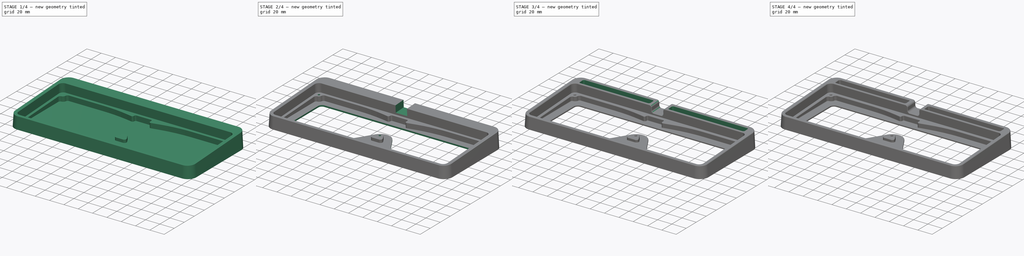
[diagram: build sequence overview — one tinted view per stage of 4, left to right]
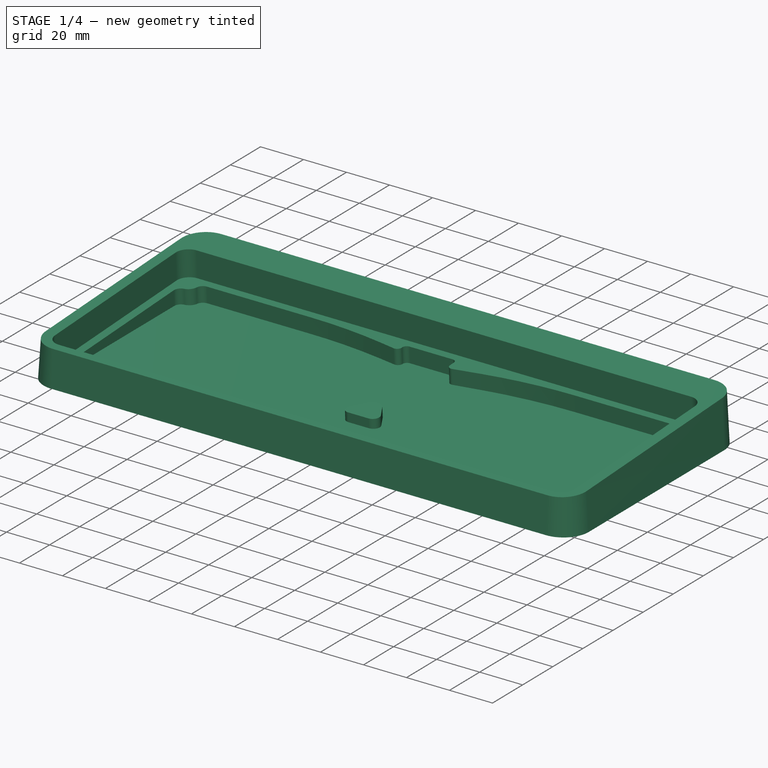
[diagram: stage 1 of 4 — iso view after this stage's code; geometry added in this stage tinted green]
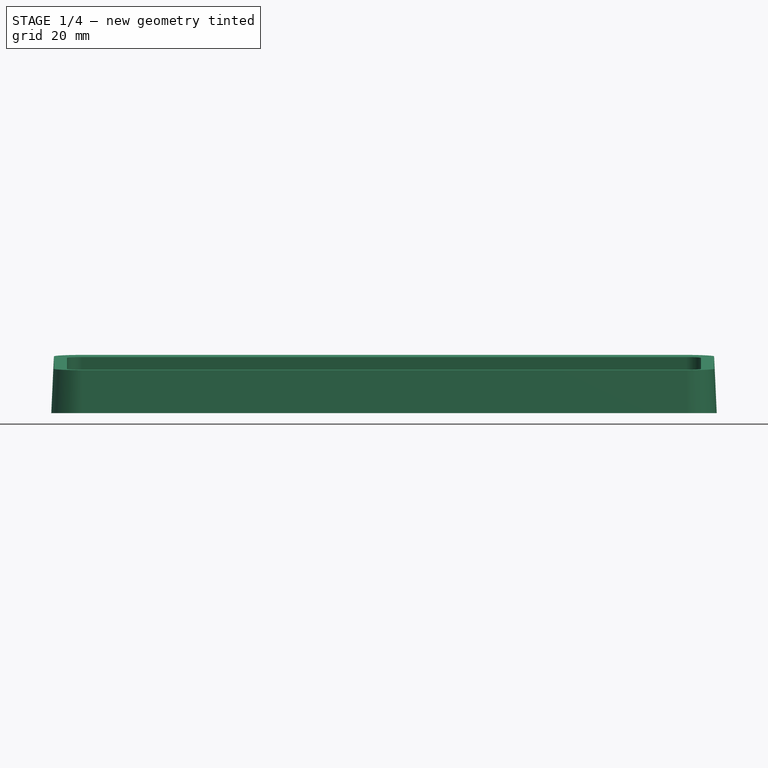
[diagram: stage 1 of 4 — front view after this stage's code; geometry added in this stage tinted green]
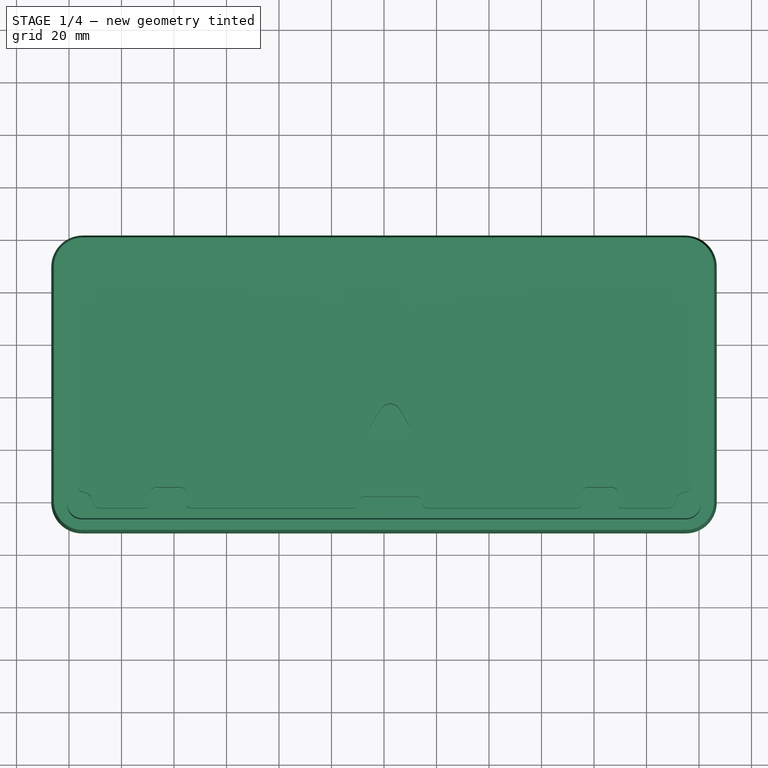
[diagram: stage 1 of 4 — top view after this stage's code; geometry added in this stage tinted green]
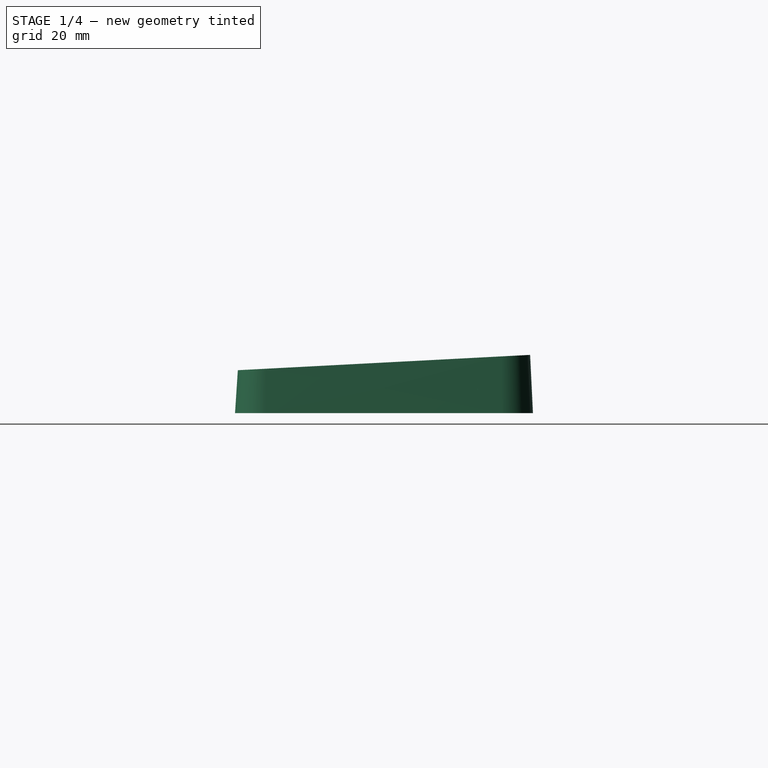
[diagram: stage 1 of 4 — right view after this stage's code; geometry added in this stage tinted green]
FCSTD DOCUMENT  (FreeCAD 0.20R)
Label: case
License: All rights reserved
LicenseURL: http://en.wikipedia.org/wiki/All_rights_reserved
objects: Sketcher::SketchObject×8, PartDesign::Pocket×5, PartDesign::Fillet×5, PartDesign::AdditiveLoft×1, PartDesign::Hole×1, PartDesign::Chamfer×1, PartDesign::Body×1
note: 35 computed .brp shape members not serialized (recipe doc carries the construction recipe); baked Part::Feature solids carry a one-line shape summary decoded from their .brp

FEATURE [Sketcher::SketchObject] Sketch
  FullyConstrained = false
  MapMode = 5
  Support = -> [XY_Plane]
  sketch-geometry (8):
    g0: LineSegment StartX=-115 StartY=-51.75 StartZ=0 EndX=115 EndY=-51.75 EndZ=0
    g1: ArcOfCircle CenterX=115 CenterY=-40 CenterZ=0 NormalX=0 NormalY=0 NormalZ=1 AngleXU=0 Radius=11.75 StartAngle=4.71239 EndAngle=6.28319
    g2: ArcOfCircle CenterX=-115 CenterY=-40 CenterZ=0 NormalX=0 NormalY=0 NormalZ=1 AngleXU=0 Radius=11.75 StartAngle=3.14159 EndAngle=4.71239
    g3: LineSegment StartX=-126.75 StartY=49.75 StartZ=0 EndX=-126.75 EndY=-40 EndZ=0
    g4: ArcOfCircle CenterX=-114.75 CenterY=49.75 CenterZ=0 NormalX=0 NormalY=0 NormalZ=1 AngleXU=0 Radius=12 StartAngle=1.5708 EndAngle=3.14159
    g5: LineSegment StartX=-114.75 StartY=61.75 StartZ=0 EndX=114.75 EndY=61.75 EndZ=0
    g6: LineSegment StartX=126.75 StartY=49.75 StartZ=0 EndX=126.75 EndY=-40 EndZ=0
    g7: ArcOfCircle CenterX=114.75 CenterY=49.75 CenterZ=0 NormalX=0 NormalY=0 NormalZ=1 AngleXU=0 Radius=12 StartAngle=0 EndAngle=1.5708
  constraints (8):
    c: Coincident(g2,g3)
    c: Coincident(g3,g4)
    c: Coincident(g0,g2)
    c: Coincident(g4,g5)
    c: Coincident(g5,g7)
    c: Coincident(g0,g1)
    c: Coincident(g1,g6)
    c: Coincident(g6,g7)
FEATURE [Sketcher::SketchObject] Sketch001
  AttachmentOffset = pos=(0,0,19) rot=(1,0,0;0.05236rad)
  FullyConstrained = false
  MapMode = 5
  Placement = pos=(0,0,19) rot=(1,0,0;0.05236rad)
  Support = -> [XY_Plane]
  sketch-geometry (8):
    g0: ArcOfCircle CenterX=-115 CenterY=-40 CenterZ=0 NormalX=0 NormalY=0 NormalZ=1 AngleXU=0 Radius=10.75 StartAngle=3.14159 EndAngle=4.71239
    g1: LineSegment StartX=-115 StartY=-50.75 StartZ=0 EndX=115 EndY=-50.75 EndZ=0
    g2: ArcOfCircle CenterX=115 CenterY=-40 CenterZ=0 NormalX=0 NormalY=0 NormalZ=1 AngleXU=0 Radius=10.75 StartAngle=4.71239 EndAngle=6.28319
    g3: LineSegment StartX=125.75 StartY=49.75 StartZ=0 EndX=125.75 EndY=-40 EndZ=0
    g4: ArcOfCircle CenterX=114.75 CenterY=49.75 CenterZ=0 NormalX=0 NormalY=0 NormalZ=1 AngleXU=0 Radius=11 StartAngle=0 EndAngle=1.5708
    g5: LineSegment StartX=-114.75 StartY=60.75 StartZ=0 EndX=114.75 EndY=60.75 EndZ=0
    g6: LineSegment StartX=-125.75 StartY=49.75 StartZ=0 EndX=-125.75 EndY=-40 EndZ=0
    g7: ArcOfCircle CenterX=-114.75 CenterY=49.75 CenterZ=0 NormalX=0 NormalY=0 NormalZ=1 AngleXU=0 Radius=11 StartAngle=1.5708 EndAngle=3.14159
  constraints (8):
    c: Coincident(g0,g6)
    c: Coincident(g6,g7)
    c: Coincident(g0,g1)
    c: Coincident(g5,g7)
    c: Coincident(g4,g5)
    c: Coincident(g1,g2)
    c: Coincident(g2,g3)
    c: Coincident(g3,g4)
FEATURE [PartDesign::AdditiveLoft] AdditiveLoft
  Closed = true
  Profile = -> Sketch
  Ruled = true
  Sections = -> [Sketch001]
FEATURE [Sketcher::SketchObject] Sketch002
  FullyConstrained = false
  MapMode = 5
  Placement = pos=(0,-0.99302,18.948) rot=(1,0,0;0.05236rad)
  Support = -> [AdditiveLoft]
  sketch-geometry (8):
    g0: LineSegment StartX=-115 StartY=45.75 StartZ=0 EndX=115 EndY=45.75 EndZ=0
    g1: LineSegment StartX=-115 StartY=-45.75 StartZ=0 EndX=115 EndY=-45.75 EndZ=0
    g2: ArcOfCircle CenterX=115 CenterY=-40 CenterZ=0 NormalX=0 NormalY=0 NormalZ=1 AngleXU=0 Radius=5.75 StartAngle=4.71239 EndAngle=6.28319
    g3: LineSegment StartX=120.75 StartY=40 StartZ=0 EndX=120.75 EndY=-40 EndZ=0
    g4: ArcOfCircle CenterX=115 CenterY=40 CenterZ=0 NormalX=0 NormalY=0 NormalZ=1 AngleXU=0 Radius=5.75 StartAngle=0 EndAngle=1.5708
    g5: ArcOfCircle CenterX=-115 CenterY=-40 CenterZ=0 NormalX=0 NormalY=0 NormalZ=1 AngleXU=0 Radius=5.75 StartAngle=3.14159 EndAngle=4.71239
    g6: LineSegment StartX=-120.75 StartY=40 StartZ=0 EndX=-120.75 EndY=-40 EndZ=0
    g7: ArcOfCircle CenterX=-115 CenterY=40 CenterZ=0 NormalX=0 NormalY=0 NormalZ=1 AngleXU=0 Radius=5.75 StartAngle=1.5708 EndAngle=3.14159
  constraints (8):
    c: Coincident(g5,g6)
    c: Coincident(g6,g7)
    c: Coincident(g1,g5)
    c: Coincident(g0,g7)
    c: Coincident(g1,g2)
    c: Coincident(g0,g4)
    c: Coincident(g2,g3)
    c: Coincident(g3,g4)
FEATURE [PartDesign::Pocket] Pocket
  BaseFeature = -> AdditiveLoft
  Direction = (0,0.052336,-0.99863)
  Length = 12
  Length2 = 5
  Profile = -> Sketch002
  ReferenceAxis = -> Sketch002 [N_Axis]
  Type = 0
FEATURE [Sketcher::SketchObject] Sketch003
  FullyConstrained = false
  MapMode = 5
  Placement = pos=(0,-0.364989,6.9644) rot=(1,0,0;0.05236rad)
  Support = -> [Pocket]
  sketch-geometry (58):
    g0: ArcOfCircle CenterX=2.375 CenterY=-6.28567 CenterZ=0 NormalX=0 NormalY=0 NormalZ=1 AngleXU=0 Radius=4.1 StartAngle=0.532966 EndAngle=2.57593
    g1: ArcOfCircle CenterX=-107.971 CenterY=-39 CenterZ=0 NormalX=0 NormalY=0 NormalZ=1 AngleXU=0 Radius=3 StartAngle=3.28291 EndAngle=4.71239
    g2: ArcOfCircle CenterX=-114 CenterY=-32.9708 CenterZ=0 NormalX=0 NormalY=0 NormalZ=1 AngleXU=0 Radius=3 StartAngle=3.14159 EndAngle=4.57107
    g3: LineSegment StartX=-117 StartY=32.9708 StartZ=0 EndX=-117 EndY=-32.9708 EndZ=0
    g4: ArcOfCircle CenterX=-114 CenterY=32.9708 CenterZ=0 NormalX=0 NormalY=0 NormalZ=1 AngleXU=0 Radius=3 StartAngle=1.71211 EndAngle=3.14159
    g5: ArcOfCircle CenterX=-107.971 CenterY=39 CenterZ=0 NormalX=0 NormalY=0 NormalZ=1 AngleXU=0 Radius=3 StartAngle=1.5708 EndAngle=3.00028
    g6: ArcOfCircle CenterX=107.971 CenterY=39 CenterZ=0 NormalX=0 NormalY=0 NormalZ=1 AngleXU=0 Radius=3 StartAngle=0.141315 EndAngle=1.5708
    g7: ArcOfCircle CenterX=114 CenterY=32.9708 CenterZ=0 NormalX=0 NormalY=0 NormalZ=1 AngleXU=0 Radius=3 StartAngle=0 EndAngle=1.42948
    g8: ArcOfCircle CenterX=107.971 CenterY=-39 CenterZ=0 NormalX=0 NormalY=0 NormalZ=1 AngleXU=0 Radius=3 StartAngle=4.71239 EndAngle=6.14187
    g9: LineSegment StartX=117 StartY=32.9708 StartZ=0 EndX=117 EndY=-32.9708 EndZ=0
    g10: ArcOfCircle CenterX=114 CenterY=-32.9708 CenterZ=0 NormalX=0 NormalY=0 NormalZ=1 AngleXU=0 Radius=3 StartAngle=4.8537 EndAngle=6.28319
    g11: ArcOfCircle CenterX=115 CenterY=-40 CenterZ=0 NormalX=0 NormalY=0 NormalZ=1 AngleXU=0 Radius=4.1 StartAngle=1.71211 EndAngle=3.00028
    g12: ArcOfCircle CenterX=115 CenterY=40 CenterZ=0 NormalX=0 NormalY=0 NormalZ=1 AngleXU=0 Radius=4.1 StartAngle=3.28291 EndAngle=4.57107
    g13: ArcOfCircle CenterX=-115 CenterY=40 CenterZ=0 NormalX=0 NormalY=0 NormalZ=1 AngleXU=0 Radius=4.1 StartAngle=4.8537 EndAngle=6.14187
    g14: ArcOfCircle CenterX=-115 CenterY=-40 CenterZ=0 NormalX=0 NormalY=0 NormalZ=1 AngleXU=0 Radius=4.1 StartAngle=0.141315 EndAngle=1.42948
    g15: LineSegment StartX=5.90635 StartY=-4.2025 StartZ=0 EndX=9.51837 EndY=-10.3255 EndZ=0
    g16: ArcOfCircle CenterX=6.93445 CenterY=-11.8498 CenterZ=0 NormalX=0 NormalY=0 NormalZ=1 AngleXU=0 Radius=3 StartAngle=4.71239 EndAngle=6.81615
    g17: LineSegment StartX=-2.46045 StartY=-14.8498 StartZ=0 EndX=6.93445 EndY=-14.8498 EndZ=0
    g18: LineSegment StartX=-1.08635 StartY=-4.08816 StartZ=0 EndX=-4.99315 EndY=-10.2419 EndZ=0
    g19: ArcOfCircle CenterX=-2.46045 CenterY=-11.8498 CenterZ=0 NormalX=0 NormalY=0 NormalZ=1 AngleXU=0 Radius=3 StartAngle=2.57593 EndAngle=4.71239
    g20: LineSegment StartX=90.8588 StartY=-42 StartZ=0 EndX=107.971 EndY=-42 EndZ=0
    g21: ArcOfCircle CenterX=90.8588 CenterY=-40 CenterZ=0 NormalX=0 NormalY=0 NormalZ=1 AngleXU=0 Radius=2 StartAngle=3.14159 EndAngle=4.71239
    g22: LineSegment StartX=88.8588 StartY=-40 StartZ=0 EndX=88.8588 EndY=-36 EndZ=0
    g23: ArcOfCircle CenterX=86.8588 CenterY=-36 CenterZ=0 NormalX=0 NormalY=0 NormalZ=1 AngleXU=0 Radius=2 StartAngle=0 EndAngle=1.5708
    g24: LineSegment StartX=77.4585 StartY=-34 StartZ=0 EndX=86.8588 EndY=-34 EndZ=0
    g25: ArcOfCircle CenterX=77.4585 CenterY=-36 CenterZ=0 NormalX=0 NormalY=0 NormalZ=1 AngleXU=0 Radius=2 StartAngle=1.5708 EndAngle=3.14159
    g26: LineSegment StartX=75.4585 StartY=-40 StartZ=0 EndX=75.4585 EndY=-36 EndZ=0
    g27: ArcOfCircle CenterX=73.4585 CenterY=-40 CenterZ=0 NormalX=0 NormalY=0 NormalZ=1 AngleXU=0 Radius=2 StartAngle=4.71239 EndAngle=6.28319
    g28: ArcOfCircle CenterX=-73.453 CenterY=-40 CenterZ=0 NormalX=0 NormalY=0 NormalZ=1 AngleXU=0 Radius=2 StartAngle=3.14159 EndAngle=4.71239
    g29: LineSegment StartX=-75.453 StartY=-40 StartZ=0 EndX=-75.453 EndY=-36 EndZ=0
    g30: ArcOfCircle CenterX=-77.453 CenterY=-36 CenterZ=0 NormalX=0 NormalY=0 NormalZ=1 AngleXU=0 Radius=2 StartAngle=0 EndAngle=1.5708
    g31: LineSegment StartX=-86.8588 StartY=-34 StartZ=0 EndX=-77.453 EndY=-34 EndZ=0
    g32: ArcOfCircle CenterX=-86.8588 CenterY=-36 CenterZ=0 NormalX=0 NormalY=0 NormalZ=1 AngleXU=0 Radius=2 StartAngle=1.5708 EndAngle=3.14159
    g33: LineSegment StartX=-88.8588 StartY=-40 StartZ=0 EndX=-88.8588 EndY=-36 EndZ=0
    g34: LineSegment StartX=-107.971 StartY=-42 StartZ=0 EndX=-90.8588 EndY=-42 EndZ=0
    g35: ArcOfCircle CenterX=-90.8588 CenterY=-40 CenterZ=0 NormalX=0 NormalY=0 NormalZ=1 AngleXU=0 Radius=2 StartAngle=4.71239 EndAngle=6.28319
    g36: ArcOfCircle CenterX=10.2392 CenterY=37.3596 CenterZ=0 NormalX=0 NormalY=0 NormalZ=1 AngleXU=0 Radius=2 StartAngle=3.14159 EndAngle=4.91659
    g37: ArcOfCircle CenterX=-17.7608 CenterY=39.6802 CenterZ=0 NormalX=0 NormalY=0 NormalZ=1 AngleXU=0 Radius=2 StartAngle=4.53786 EndAngle=6.28319
    g38: LineSegment StartX=-15.7608 StartY=39.6802 StartZ=0 EndX=-15.7608 EndY=40 EndZ=0
    g39: ArcOfCircle CenterX=-13.7608 CenterY=40 CenterZ=0 NormalX=0 NormalY=0 NormalZ=1 AngleXU=0 Radius=2 StartAngle=1.5708 EndAngle=3.14159
    g40: LineSegment StartX=8.23921 StartY=37.3596 StartZ=0 EndX=8.23921 EndY=40 EndZ=0
    g41: LineSegment StartX=-13.7608 StartY=42 StartZ=0 EndX=6.23921 EndY=42 EndZ=0
    g42: ArcOfCircle CenterX=6.23921 CenterY=40 CenterZ=0 NormalX=0 NormalY=0 NormalZ=1 AngleXU=0 Radius=2 StartAngle=0 EndAngle=1.5708
    g43: LineSegment StartX=-25.2029 StartY=38.9616 StartZ=0 EndX=-18.1081 EndY=37.7105 EndZ=0
    g44: LineSegment StartX=-107.971 StartY=42 StartZ=0 EndX=-59.9325 EndY=42 EndZ=0
    g45: ArcOfCircle CenterX=-59.9325 CenterY=-158 CenterZ=0 NormalX=0 NormalY=0 NormalZ=1 AngleXU=0 Radius=200 StartAngle=1.39626 EndAngle=1.5708
    g46: LineSegment StartX=10.6448 StartY=35.4012 StartZ=0 EndX=22.4434 EndY=37.8446 EndZ=0
    g47: LineSegment StartX=63.0009 StartY=42 StartZ=0 EndX=107.971 EndY=42 EndZ=0
    g48: ArcOfCircle CenterX=63.0009 CenterY=-158 CenterZ=0 NormalX=0 NormalY=0 NormalZ=1 AngleXU=0 Radius=200 StartAngle=1.5708 EndAngle=1.775
    g49: LineSegment StartX=-73.453 StartY=-42 StartZ=0 EndX=-11.852 EndY=-42 EndZ=0
    g50: ArcOfCircle CenterX=-11.852 CenterY=-40 CenterZ=0 NormalX=0 NormalY=0 NormalZ=1 AngleXU=0 Radius=2 StartAngle=4.71239 EndAngle=6.10283
    g51: LineSegment StartX=-9.68066 StartY=-39.241 StartZ=0 EndX=-9.88445 EndY=-40.3588 EndZ=0
    g52: ArcOfCircle CenterX=-7.7131 CenterY=-39.5998 CenterZ=0 NormalX=0 NormalY=0 NormalZ=1 AngleXU=0 Radius=2 StartAngle=1.5708 EndAngle=2.96124
    g53: LineSegment StartX=-7.7131 StartY=-37.5998 StartZ=0 EndX=12.4631 EndY=-37.5998 EndZ=0
    g54: ArcOfCircle CenterX=12.4631 CenterY=-39.5998 CenterZ=0 NormalX=0 NormalY=0 NormalZ=1 AngleXU=0 Radius=2 StartAngle=0.180353 EndAngle=1.5708
    g55: LineSegment StartX=14.4307 StartY=-39.241 StartZ=0 EndX=14.6345 EndY=-40.3588 EndZ=0
    g56: LineSegment StartX=16.602 StartY=-42 StartZ=0 EndX=73.4585 EndY=-42 EndZ=0
    g57: ArcOfCircle CenterX=16.602 CenterY=-40 CenterZ=0 NormalX=0 NormalY=0 NormalZ=1 AngleXU=0 Radius=2 StartAngle=3.32195 EndAngle=4.71239
  constraints (58):
    c: Coincident(g2,g3)
    c: Coincident(g3,g4)
    c: Coincident(g2,g14)
    c: Coincident(g4,g13)
    c: Coincident(g1,g14)
    c: Coincident(g5,g13)
    c: Coincident(g1,g34)
    c: Coincident(g5,g44)
    c: Coincident(g34,g35)
    c: Coincident(g33,g35)
    c: Coincident(g32,g33)
    c: Coincident(g31,g32)
    c: Coincident(g30,g31)
    c: Coincident(g28,g29)
    c: Coincident(g29,g30)
    c: Coincident(g28,g49)
    c: Coincident(g44,g45)
    c: Coincident(g43,g45)
    c: Coincident(g37,g43)
    c: Coincident(g37,g38)
    c: Coincident(g38,g39)
    c: Coincident(g39,g41)
    c: Coincident(g49,g50)
    c: Coincident(g50,g51)
    c: Coincident(g51,g52)
    c: Coincident(g52,g53)
    c: Coincident(g18,g19)
    c: Coincident(g17,g19)
    c: Coincident(g0,g18)
    c: Coincident(g0,g15)
    c: Coincident(g41,g42)
    c: Coincident(g16,g17)
    c: Coincident(g36,g40)
    c: Coincident(g40,g42)
    c: Coincident(g15,g16)
    c: Coincident(g36,g46)
    c: Coincident(g53,g54)
    c: Coincident(g54,g55)
    c: Coincident(g55,g57)
    c: Coincident(g56,g57)
    c: Coincident(g46,g48)
    c: Coincident(g47,g48)
    c: Coincident(g27,g56)
    c: Coincident(g26,g27)
    c: Coincident(g25,g26)
    c: Coincident(g24,g25)
    c: Coincident(g23,g24)
    c: Coincident(g21,g22)
    c: Coincident(g22,g23)
    c: Coincident(g20,g21)
    c: Coincident(g8,g20)
    c: Coincident(g6,g47)
    c: Coincident(g8,g11)
    c: Coincident(g6,g12)
    c: Coincident(g10,g11)
    c: Coincident(g7,g12)
    c: Coincident(g9,g10)
    c: Coincident(g7,g9)
FEATURE [PartDesign::Pocket] Pocket001
  BaseFeature = -> Pocket
  Direction = (0,0.052336,-0.99863)
  Length = 0
  Length2 = 5
  Offset = -2
  Profile = -> Sketch003
  ReferenceAxis = -> Sketch003 [N_Axis]
  Type = 3
  UpToFace = -> Pocket [Face1]
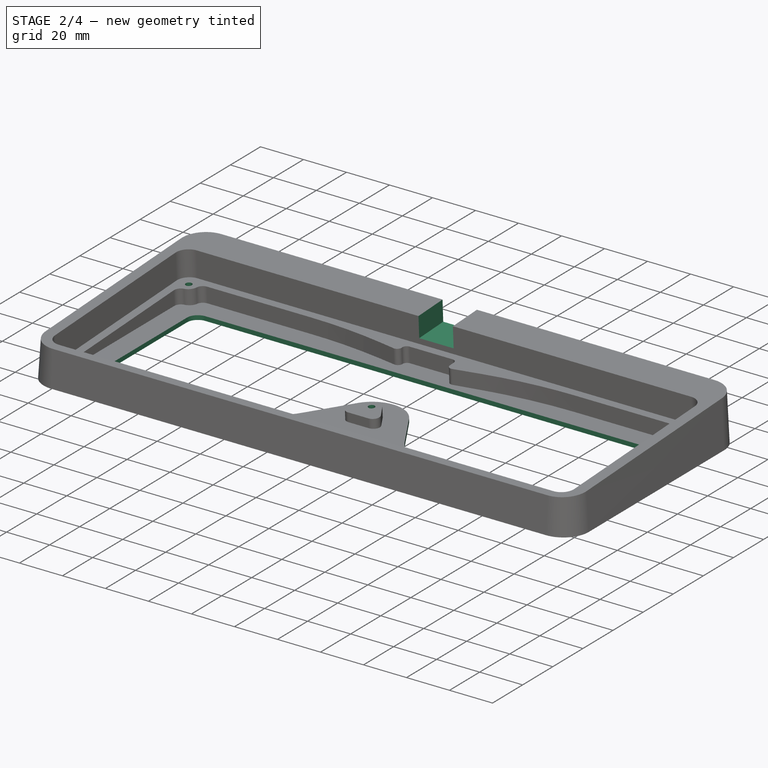
[diagram: stage 2 of 4 — iso view after this stage's code; geometry added in this stage tinted green]
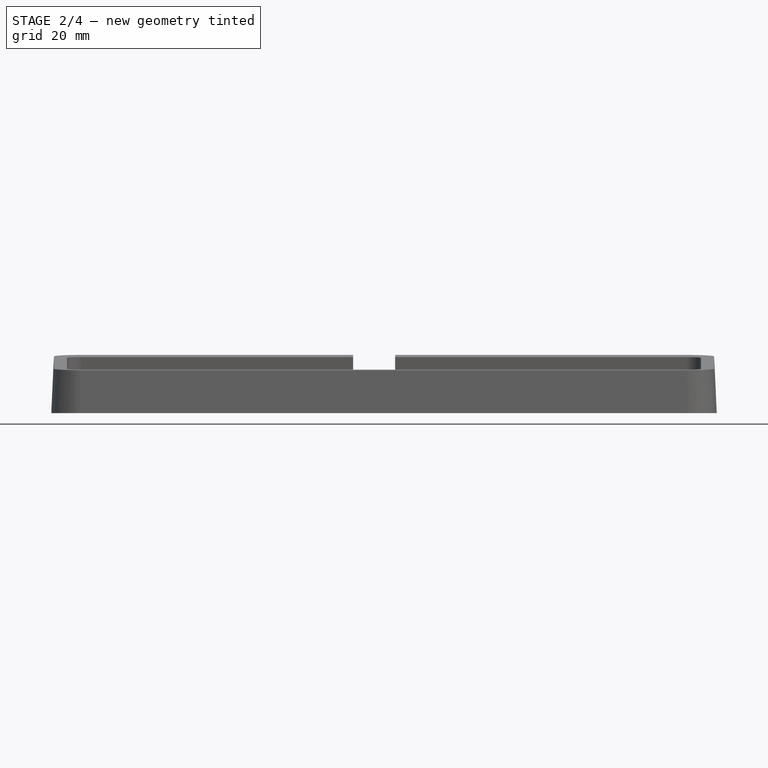
[diagram: stage 2 of 4 — front view after this stage's code; geometry added in this stage tinted green]
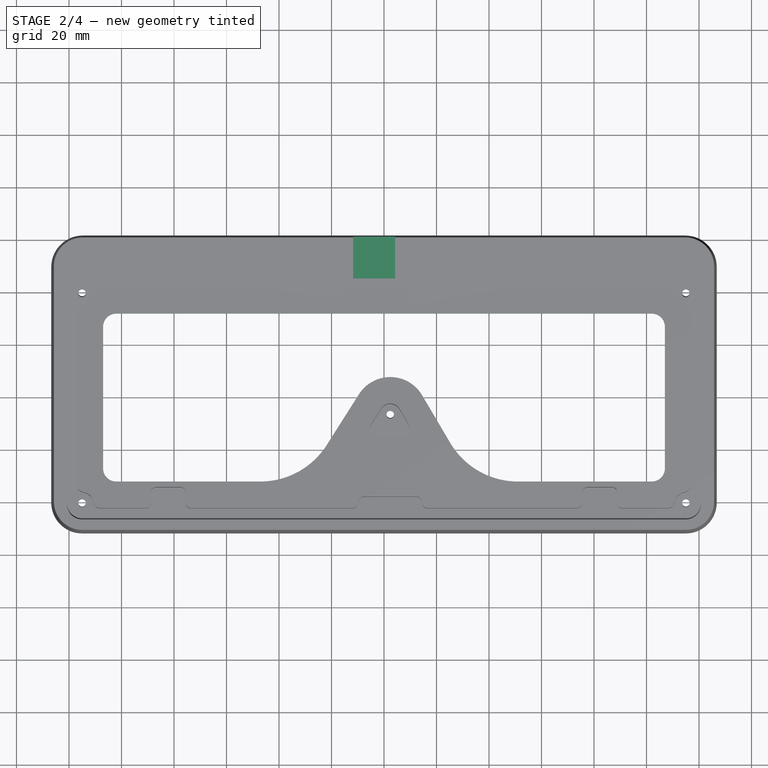
[diagram: stage 2 of 4 — top view after this stage's code; geometry added in this stage tinted green]
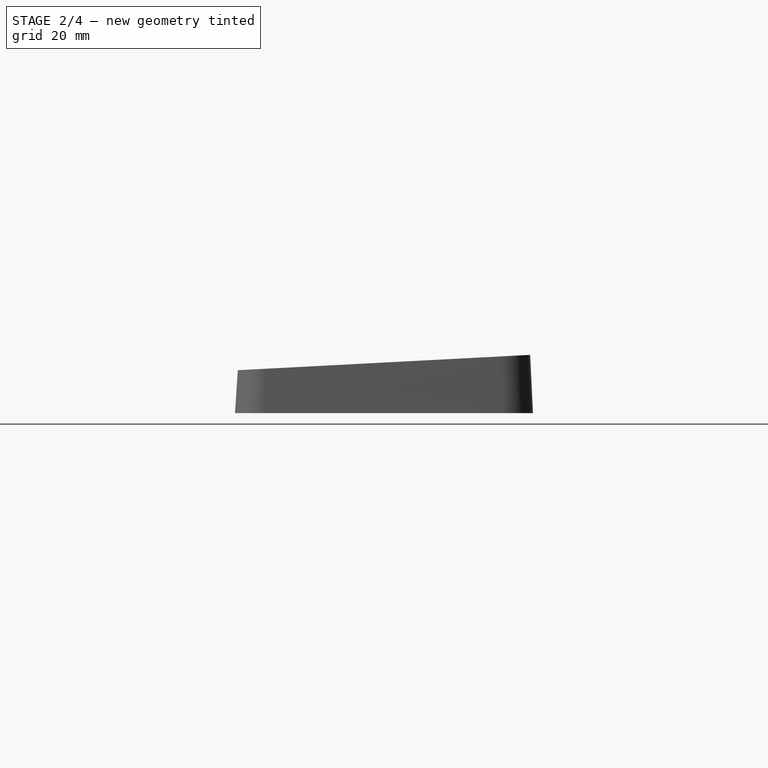
[diagram: stage 2 of 4 — right view after this stage's code; geometry added in this stage tinted green]
FEATURE [Sketcher::SketchObject] Sketch004
  FullyConstrained = false
  MapMode = 5
  Placement = pos=(0,-0.364989,6.9644) rot=(1,0,0;0.05236rad)
  Support = -> [Pocket]
  sketch-geometry (5):
    g0: Circle CenterX=-115 CenterY=40 CenterZ=0 NormalX=0 NormalY=0 NormalZ=-1 AngleXU=0 Radius=1.1
    g1: Circle CenterX=-115 CenterY=-40 CenterZ=0 NormalX=0 NormalY=0 NormalZ=-1 AngleXU=0 Radius=1.1
    g2: Circle CenterX=115 CenterY=-40 CenterZ=0 NormalX=0 NormalY=0 NormalZ=-1 AngleXU=0 Radius=1.1
    g3: Circle CenterX=115 CenterY=40 CenterZ=0 NormalX=0 NormalY=0 NormalZ=-1 AngleXU=0 Radius=1.1
    g4: Circle CenterX=2.375 CenterY=-6.28567 CenterZ=0 NormalX=0 NormalY=0 NormalZ=-1 AngleXU=0 Radius=1.1
FEATURE [PartDesign::Hole] Hole
  BaseFeature = -> Pocket001
  CustomThreadClearance = 0
  Depth = 25
  DepthType = 0
  Diameter = 2.9
  DrillForDepth = false
  DrillPoint = 1
  DrillPointAngle = 118
  HoleCutCountersinkAngle = 90
  HoleCutCustomValues = false
  HoleCutDepth = 0
  HoleCutDiameter = 6.1
  HoleCutType = 0
  ModelThread = false
  Profile = -> Sketch004
  Tapered = false
  TaperedAngle = 90
  ThreadClass = 0
  ThreadDepth = 25
  ThreadDepthType = 0
  ThreadDirection = 0
  ThreadFit = 0
  ThreadSize = 8
  ThreadType = 1
  Threaded = false
  UseCustomThreadClearance = false
FEATURE [Sketcher::SketchObject] Sketch005
  FullyConstrained = false
  MapMode = 5
  Placement = pos=(0,0,1.99726) rot=(0,0,1;0rad)
  Support = -> [Pocket001]
  sketch-geometry (14):
    g0: ArcOfCircle CenterX=2.375 CenterY=-6.28567 CenterZ=0 NormalX=0 NormalY=0 NormalZ=1 AngleXU=0 Radius=14.1 StartAngle=0.532966 EndAngle=2.57593
    g1: LineSegment StartX=-9.52867 StartY=1.27161 StartZ=0 EndX=-21.814 EndY=-18.0793 EndZ=0
    g2: ArcOfCircle CenterX=-47.141 CenterY=-2 CenterZ=0 NormalX=0 NormalY=0 NormalZ=1 AngleXU=0 Radius=30 StartAngle=4.71239 EndAngle=5.71752
    g3: LineSegment StartX=14.5194 StartY=0.878403 StartZ=0 EndX=25.2092 EndY=-17.2427 EndZ=0
    g4: ArcOfCircle CenterX=51.0483 CenterY=-2 CenterZ=0 NormalX=0 NormalY=0 NormalZ=1 AngleXU=0 Radius=30 StartAngle=3.67456 EndAngle=4.71239
    g5: ArcOfCircle CenterX=102 CenterY=27 CenterZ=0 NormalX=0 NormalY=0 NormalZ=1 AngleXU=0 Radius=5 StartAngle=0 EndAngle=1.5708
    g6: LineSegment StartX=107 StartY=27 StartZ=0 EndX=107 EndY=-27 EndZ=0
    g7: LineSegment StartX=51.0483 StartY=-32 StartZ=0 EndX=102 EndY=-32 EndZ=0
    g8: ArcOfCircle CenterX=102 CenterY=-27 CenterZ=0 NormalX=0 NormalY=0 NormalZ=1 AngleXU=0 Radius=5 StartAngle=4.71239 EndAngle=6.28319
    g9: LineSegment StartX=-102 StartY=32 StartZ=0 EndX=102 EndY=32 EndZ=0
    g10: ArcOfCircle CenterX=-102 CenterY=27 CenterZ=0 NormalX=0 NormalY=0 NormalZ=1 AngleXU=0 Radius=5 StartAngle=1.5708 EndAngle=3.14159
    g11: LineSegment StartX=-107 StartY=27 StartZ=0 EndX=-107 EndY=-27 EndZ=0
    g12: LineSegment StartX=-102 StartY=-32 StartZ=0 EndX=-47.141 EndY=-32 EndZ=0
    g13: ArcOfCircle CenterX=-102 CenterY=-27 CenterZ=0 NormalX=0 NormalY=0 NormalZ=1 AngleXU=0 Radius=5 StartAngle=3.14159 EndAngle=4.71239
  constraints (14):
    c: Coincident(g11,g13)
    c: Coincident(g10,g11)
    c: Coincident(g12,g13)
    c: Coincident(g9,g10)
    c: Coincident(g2,g12)
    c: Coincident(g1,g2)
    c: Coincident(g0,g1)
    c: Coincident(g0,g3)
    c: Coincident(g3,g4)
    c: Coincident(g4,g7)
    c: Coincident(g7,g8)
    c: Coincident(g5,g9)
    c: Coincident(g6,g8)
    c: Coincident(g5,g6)
FEATURE [PartDesign::Pocket] Pocket002
  BaseFeature = -> Hole
  Direction = (0,0,-1)
  Length = 5
  Length2 = 5
  Profile = -> Sketch005
  ReferenceAxis = -> Sketch005 [N_Axis]
  Type = 1
FEATURE [Sketcher::SketchObject] Sketch006
  FullyConstrained = false
  MapMode = 5
  Placement = pos=(0,-0.99302,18.948) rot=(1,0,0;0.05236rad)
  Support = -> [AdditiveLoft]
  sketch-geometry (4):
    g0: LineSegment StartX=4.23921 StartY=43.5 StartZ=0 EndX=-11.7608 EndY=43.5 EndZ=0
    g1: LineSegment StartX=-11.7608 StartY=43.5 StartZ=0 EndX=-11.7608 EndY=66 EndZ=0
    g2: LineSegment StartX=4.23921 StartY=43.5 StartZ=0 EndX=4.23921 EndY=66 EndZ=0
    g3: LineSegment StartX=4.23921 StartY=66 StartZ=0 EndX=-11.7608 EndY=66 EndZ=0
  constraints (4):
    c: Coincident(g0,g1)
    c: Coincident(g1,g3)
    c: Coincident(g0,g2)
    c: Coincident(g2,g3)
FEATURE [PartDesign::Pocket] Pocket003
  BaseFeature = -> Pocket002
  Direction = (0,0.052336,-0.99863)
  Length = 0
  Length2 = 5
  Offset = -2.5
  Profile = -> Sketch006
  ReferenceAxis = -> Sketch006 [N_Axis]
  Type = 3
  UpToFace = -> Pocket002 [Face30]
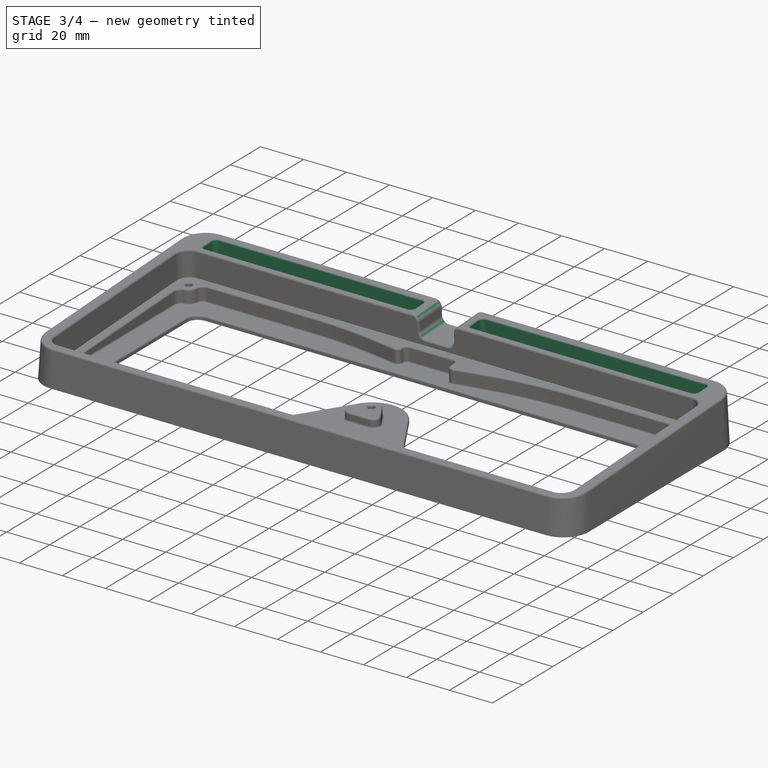
[diagram: stage 3 of 4 — iso view after this stage's code; geometry added in this stage tinted green]
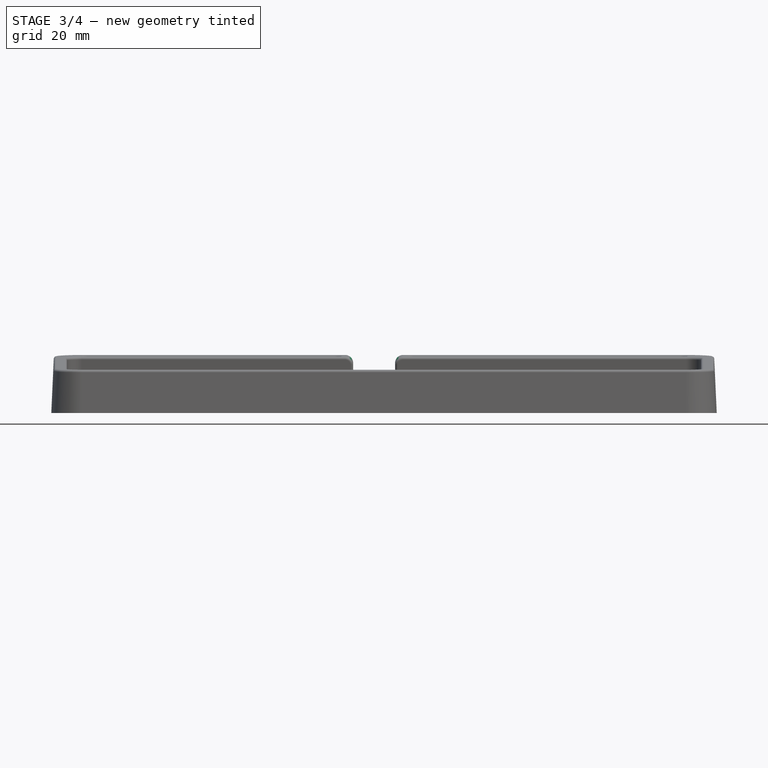
[diagram: stage 3 of 4 — front view after this stage's code; geometry added in this stage tinted green]
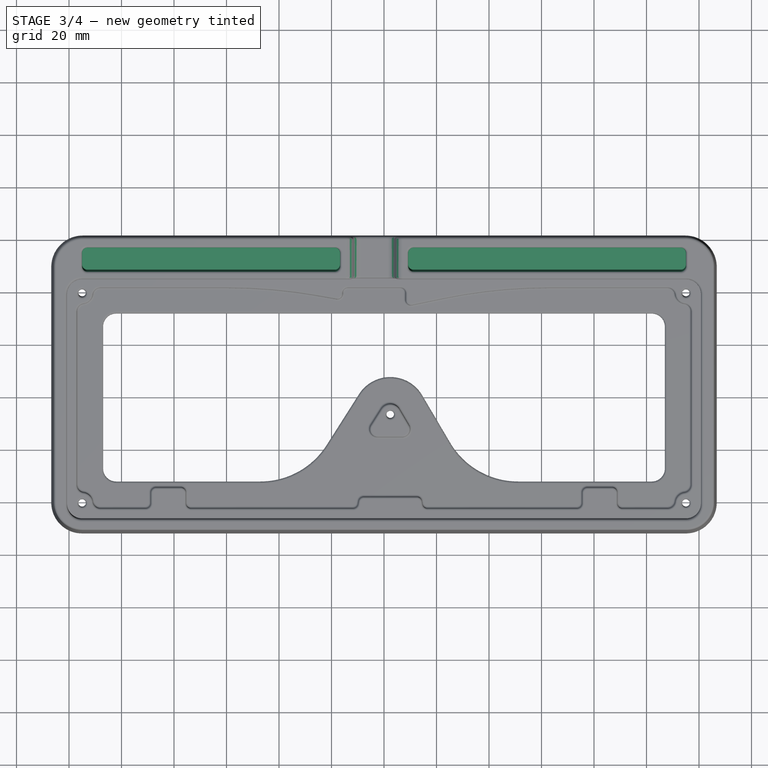
[diagram: stage 3 of 4 — top view after this stage's code; geometry added in this stage tinted green]
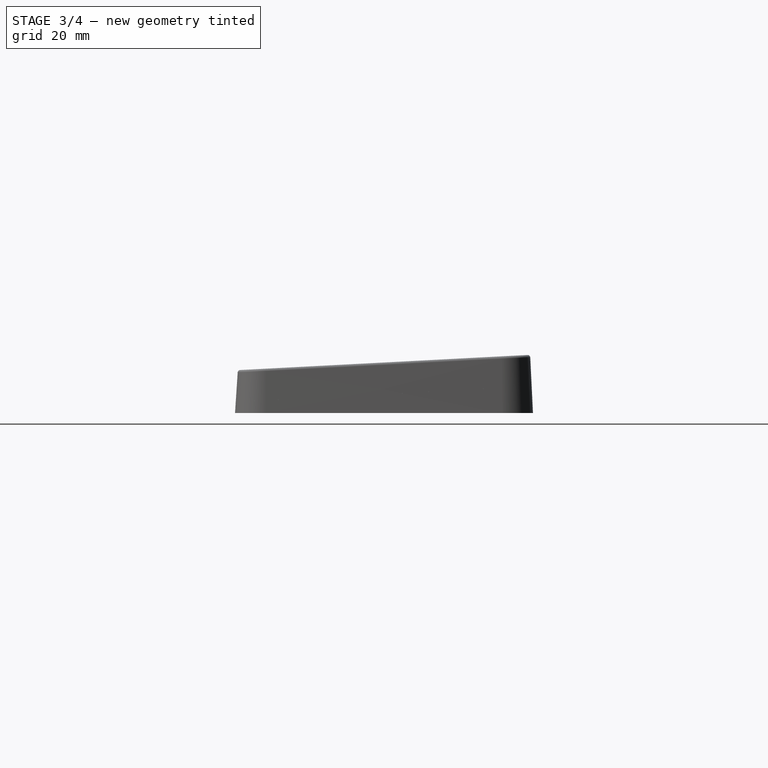
[diagram: stage 3 of 4 — right view after this stage's code; geometry added in this stage tinted green]
FEATURE [Sketcher::SketchObject] Sketch007
  FullyConstrained = false
  MapMode = 5
  Placement = pos=(0,-0.99302,18.948) rot=(1,0,0;0.05236rad)
  Support = -> [AdditiveLoft]
  sketch-geometry (16):
    g0: ArcOfCircle CenterX=113 CenterY=55.75 CenterZ=0 NormalX=0 NormalY=0 NormalZ=1 AngleXU=0 Radius=2 StartAngle=0 EndAngle=1.5708
    g1: LineSegment StartX=115 StartY=50.75 StartZ=0 EndX=115 EndY=55.75 EndZ=0
    g2: ArcOfCircle CenterX=113 CenterY=50.75 CenterZ=0 NormalX=0 NormalY=0 NormalZ=1 AngleXU=0 Radius=2 StartAngle=4.71239 EndAngle=6.28319
    g3: ArcOfCircle CenterX=-113 CenterY=55.75 CenterZ=0 NormalX=0 NormalY=0 NormalZ=1 AngleXU=0 Radius=2 StartAngle=1.5708 EndAngle=3.14159
    g4: LineSegment StartX=-115 StartY=50.75 StartZ=0 EndX=-115 EndY=55.75 EndZ=0
    g5: ArcOfCircle CenterX=-113 CenterY=50.75 CenterZ=0 NormalX=0 NormalY=0 NormalZ=1 AngleXU=0 Radius=2 StartAngle=3.14159 EndAngle=4.71239
    g6: LineSegment StartX=-113 StartY=57.75 StartZ=0 EndX=-18.7608 EndY=57.75 EndZ=0
    g7: ArcOfCircle CenterX=-18.7608 CenterY=55.75 CenterZ=0 NormalX=0 NormalY=0 NormalZ=1 AngleXU=0 Radius=2 StartAngle=0 EndAngle=1.5708
    g8: LineSegment StartX=-16.7608 StartY=50.75 StartZ=0 EndX=-16.7608 EndY=55.75 EndZ=0
    g9: LineSegment StartX=-113 StartY=48.75 StartZ=0 EndX=-18.7608 EndY=48.75 EndZ=0
    g10: ArcOfCircle CenterX=-18.7608 CenterY=50.75 CenterZ=0 NormalX=0 NormalY=0 NormalZ=1 AngleXU=0 Radius=2 StartAngle=4.71239 EndAngle=6.28319
    g11: LineSegment StartX=11.2392 StartY=57.75 StartZ=0 EndX=113 EndY=57.75 EndZ=0
    g12: ArcOfCircle CenterX=11.2392 CenterY=55.75 CenterZ=0 NormalX=0 NormalY=0 NormalZ=1 AngleXU=0 Radius=2 StartAngle=1.5708 EndAngle=3.14159
    g13: LineSegment StartX=9.23921 StartY=50.75 StartZ=0 EndX=9.23921 EndY=55.75 EndZ=0
    g14: LineSegment StartX=11.2392 StartY=48.75 StartZ=0 EndX=113 EndY=48.75 EndZ=0
    g15: ArcOfCircle CenterX=11.2392 CenterY=50.75 CenterZ=0 NormalX=0 NormalY=0 NormalZ=1 AngleXU=0 Radius=2 StartAngle=3.14159 EndAngle=4.71239
  constraints (16):
    c: Coincident(g4,g5)
    c: Coincident(g3,g4)
    c: Coincident(g5,g9)
    c: Coincident(g3,g6)
    c: Coincident(g9,g10)
    c: Coincident(g6,g7)
    c: Coincident(g8,g10)
    c: Coincident(g7,g8)
    c: Coincident(g13,g15)
    c: Coincident(g12,g13)
    c: Coincident(g14,g15)
    c: Coincident(g11,g12)
    c: Coincident(g2,g14)
    c: Coincident(g0,g11)
    c: Coincident(g1,g2)
    c: Coincident(g0,g1)
FEATURE [PartDesign::Pocket] Pocket004
  BaseFeature = -> Pocket003
  Direction = (0,0.052336,-0.99863)
  Length = 0
  Length2 = 5
  Offset = -2
  Profile = -> Sketch007
  ReferenceAxis = -> Sketch007 [N_Axis]
  Type = 3
  UpToFace = -> Pocket003 [Face1]
FEATURE [PartDesign::Fillet] Fillet
  Base = -> Pocket004 [Face35,Edge144,Face34,Edge49,Edge55,Edge85,Edge51]
  BaseFeature = -> Pocket004
  Radius = 0.8
  SupportTransform = false
  UseAllEdges = false
FEATURE [PartDesign::Fillet] Fillet001
  Base = -> Fillet [Edge278,Edge297,Edge296,Edge279]
  BaseFeature = -> Fillet
  Radius = 3
  SupportTransform = false
  UseAllEdges = false
FEATURE [PartDesign::Fillet] Fillet002
  Base = -> Fillet001 [Edge36,Edge46,Edge15,Edge9]
  BaseFeature = -> Fillet001
  Radius = 1
  SupportTransform = false
  UseAllEdges = false
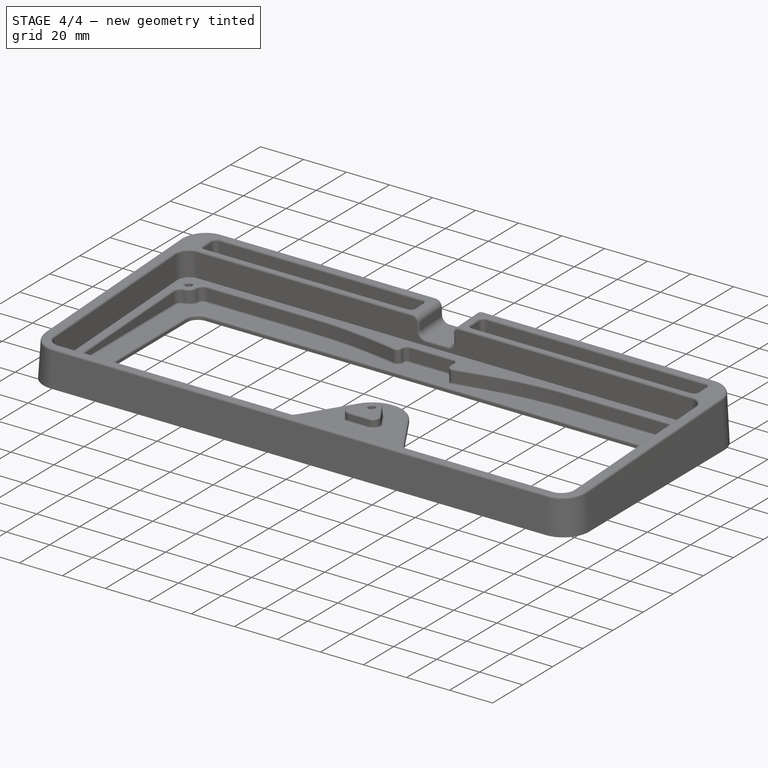
[diagram: stage 4 of 4 — iso view after this stage's code; geometry added in this stage tinted green]
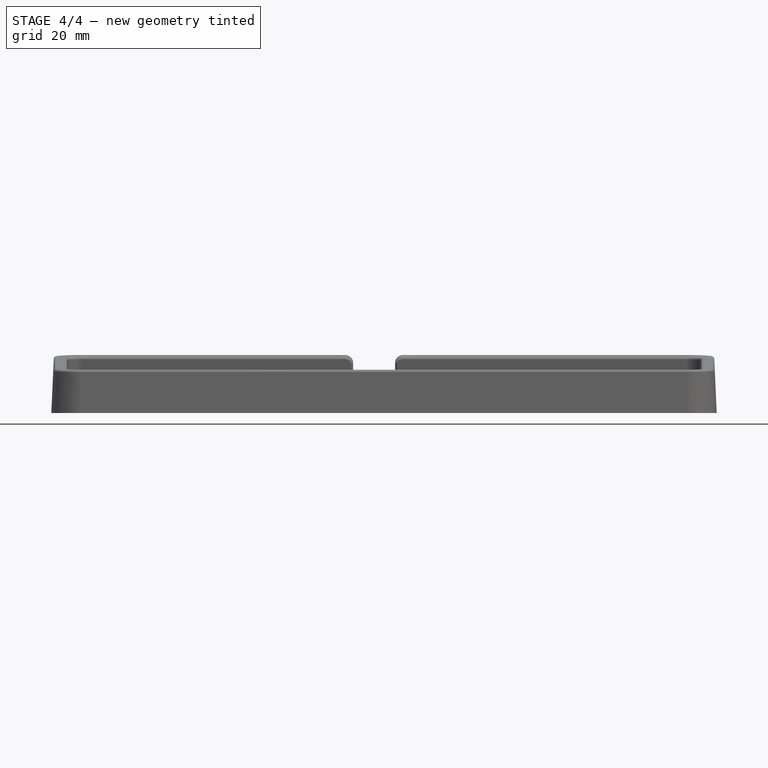
[diagram: stage 4 of 4 — front view after this stage's code; geometry added in this stage tinted green]
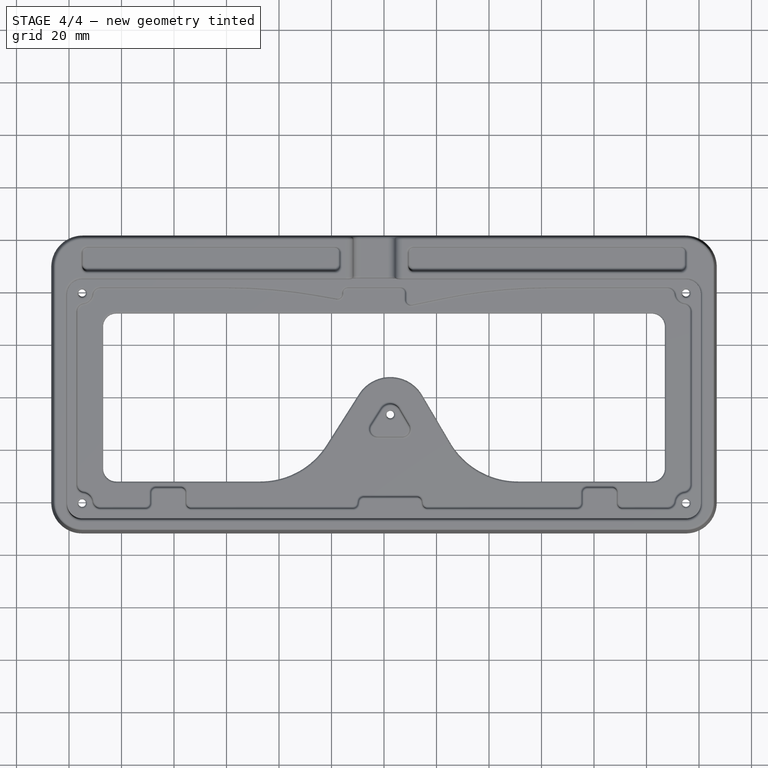
[diagram: stage 4 of 4 — top view after this stage's code; geometry added in this stage tinted green]
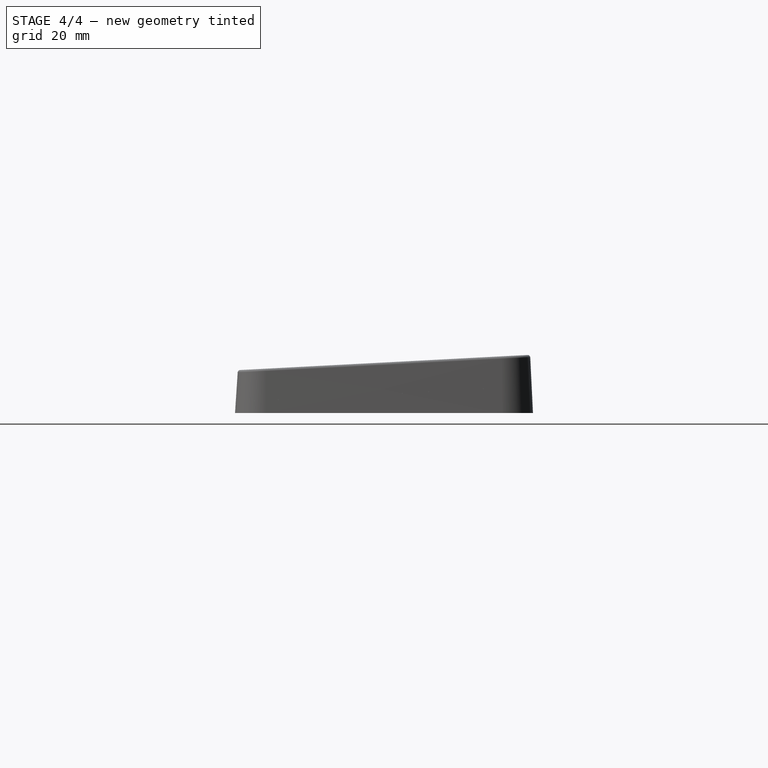
[diagram: stage 4 of 4 — right view after this stage's code; geometry added in this stage tinted green]
FEATURE [PartDesign::Chamfer] Chamfer
  Angle = 45
  Base = -> Fillet002 [Edge25,Edge28,Edge27,Edge26,Edge43]
  BaseFeature = -> Fillet002
  ChamferType = 0
  FlipDirection = false
  Size = 3
  Size2 = 1
  SupportTransform = false
  UseAllEdges = false
FEATURE [PartDesign::Fillet] Fillet003
  Base = -> Chamfer [Face28,Face27,Face26,Face25,Face2]
  BaseFeature = -> Chamfer
  Radius = 1
  SupportTransform = false
  UseAllEdges = false
FEATURE [PartDesign::Fillet] Fillet004
  Base = -> Fillet003 [Face266,Face267]
  BaseFeature = -> Fillet003
  Radius = 1
  SupportTransform = false
  UseAllEdges = false
FEATURE [PartDesign::Body] Body
  Group = -> [Sketch,Sketch001,Sketch002,AdditiveLoft,Pocket,Sketch003,Pocket001,Sketch004,Hole,Sketch005,Pocket002,Sketch006,Pocket003,Sketch007,Pocket004,Fillet,Fillet001,Fillet002,Chamfer,Fillet003,Fillet004]
  Origin = -> Origin
  Tip = -> Fillet004
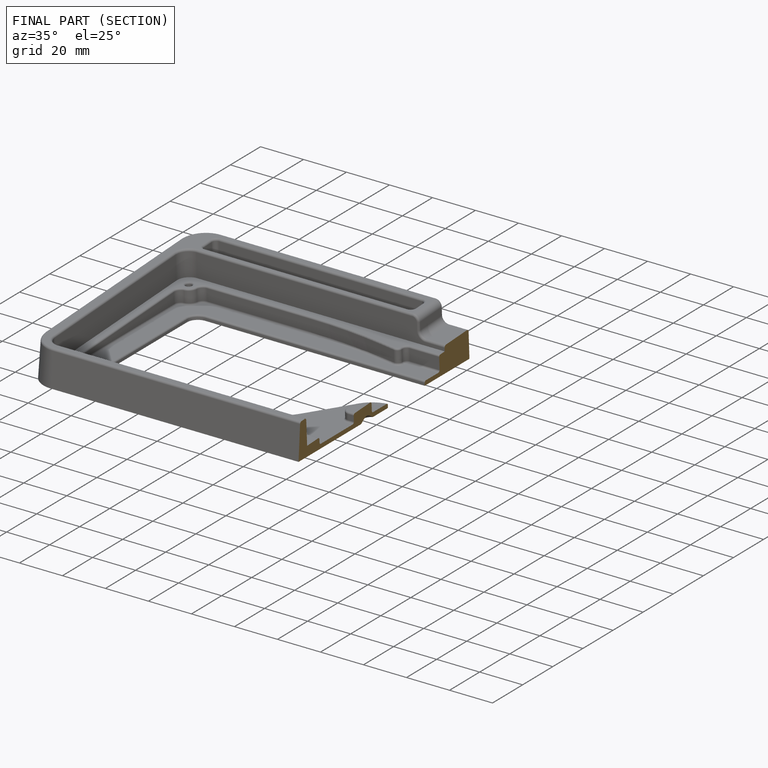
[diagram: finished part — half-section view (interior)]
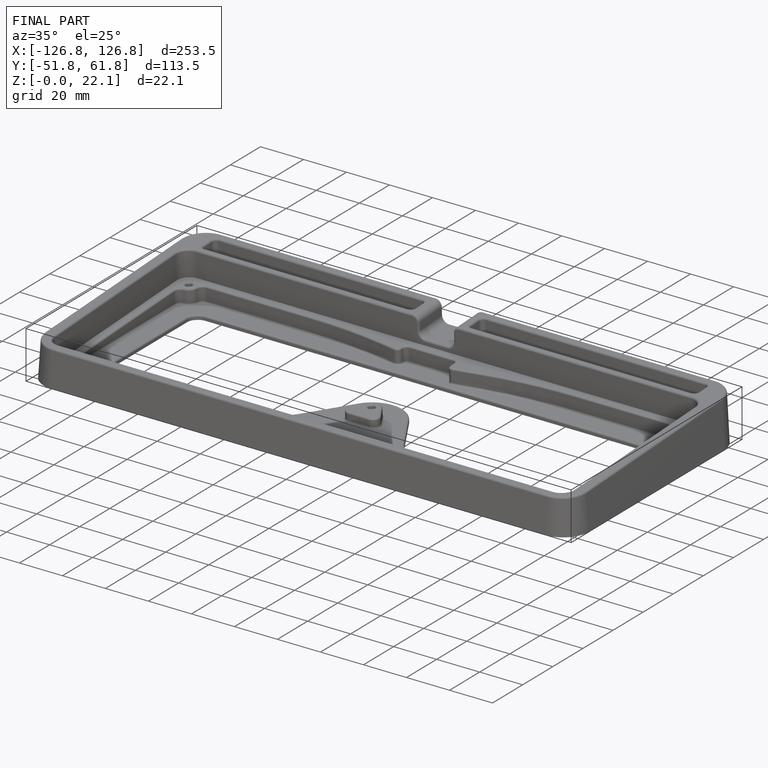
[diagram: finished part — iso view with bounding-box wireframe]
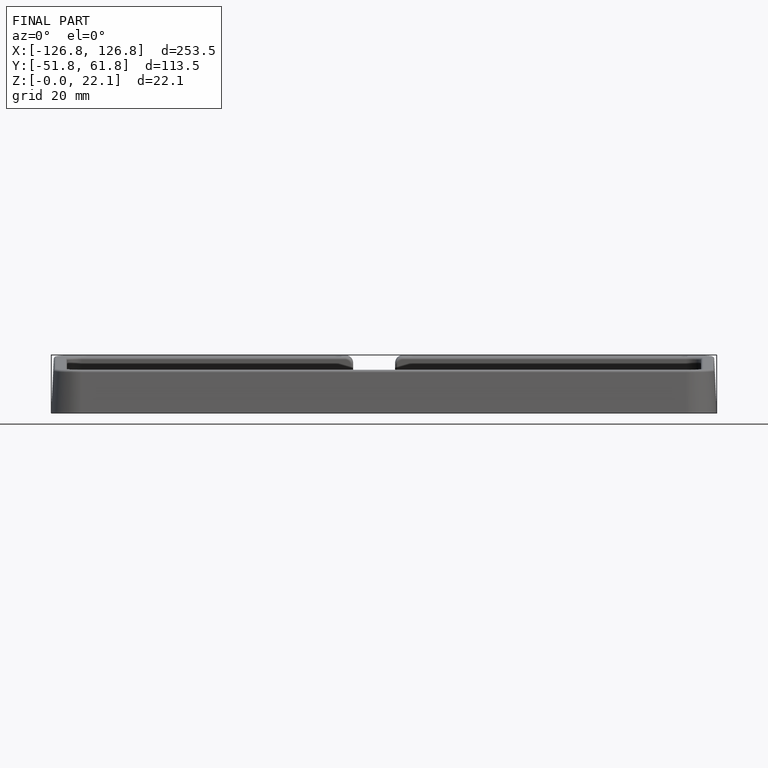
[diagram: finished part — front view with bounding-box wireframe]
